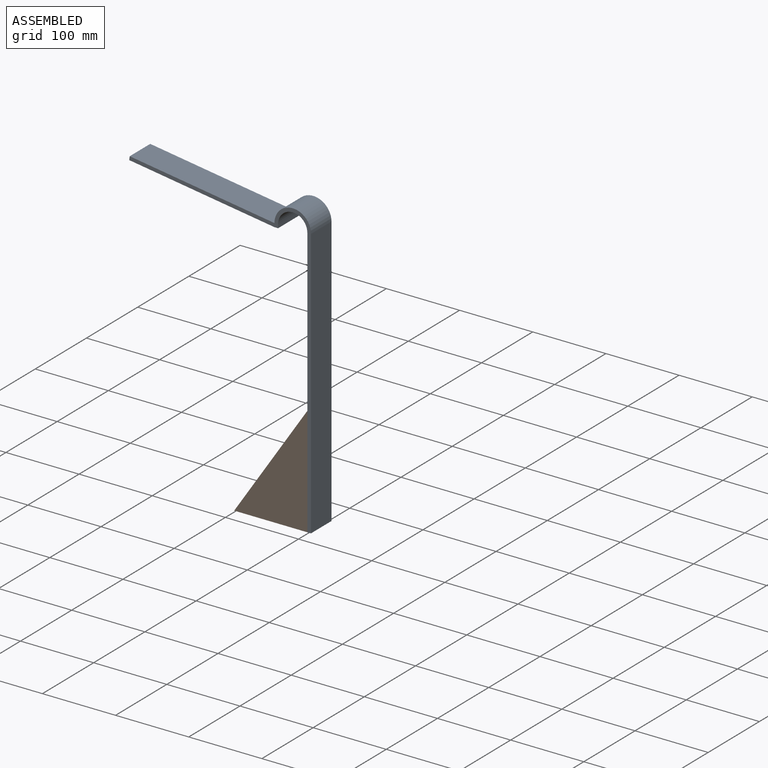
[diagram: assembled view]
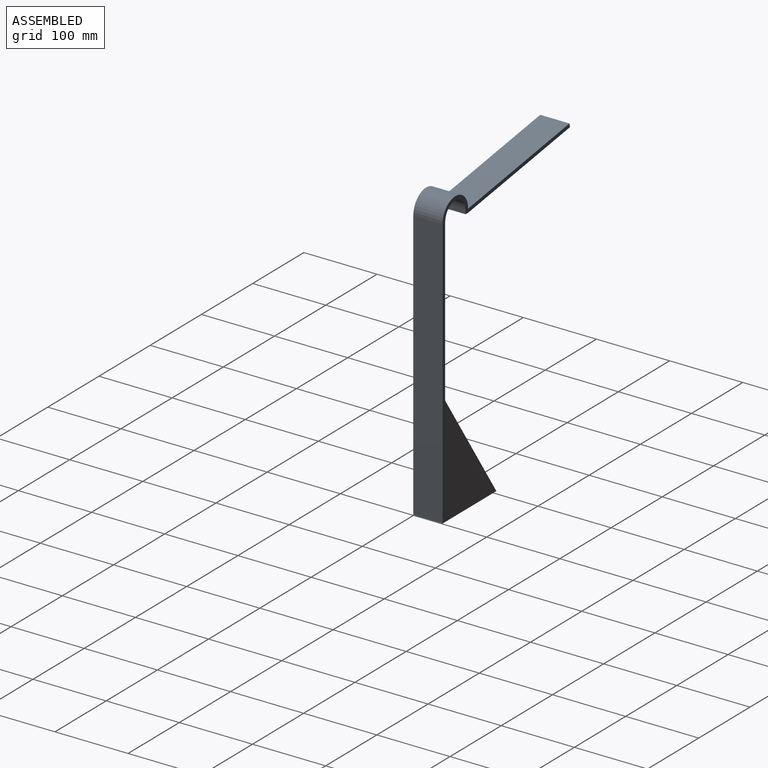
[diagram: assembled view, second angle]
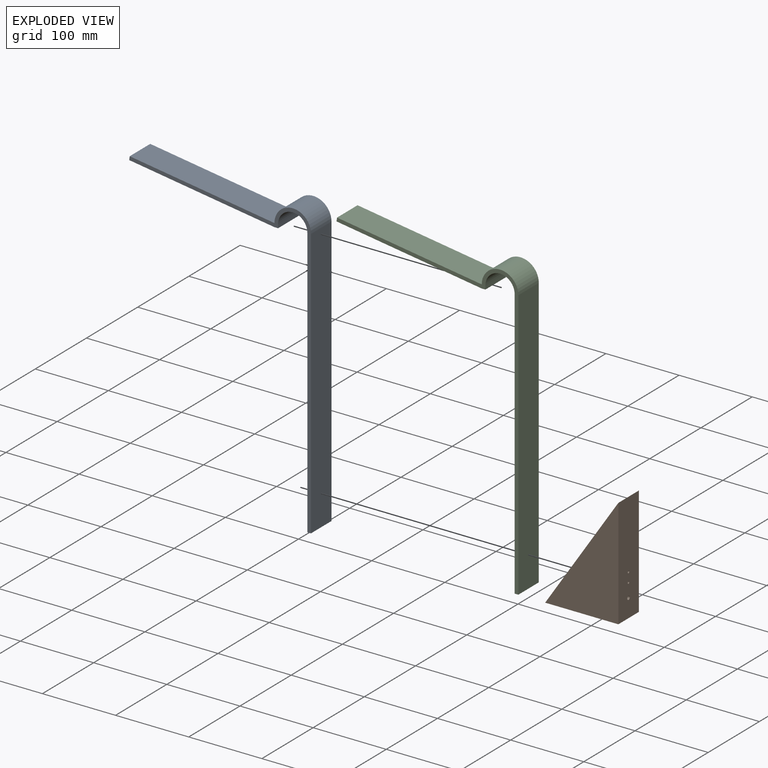
[diagram: exploded view]
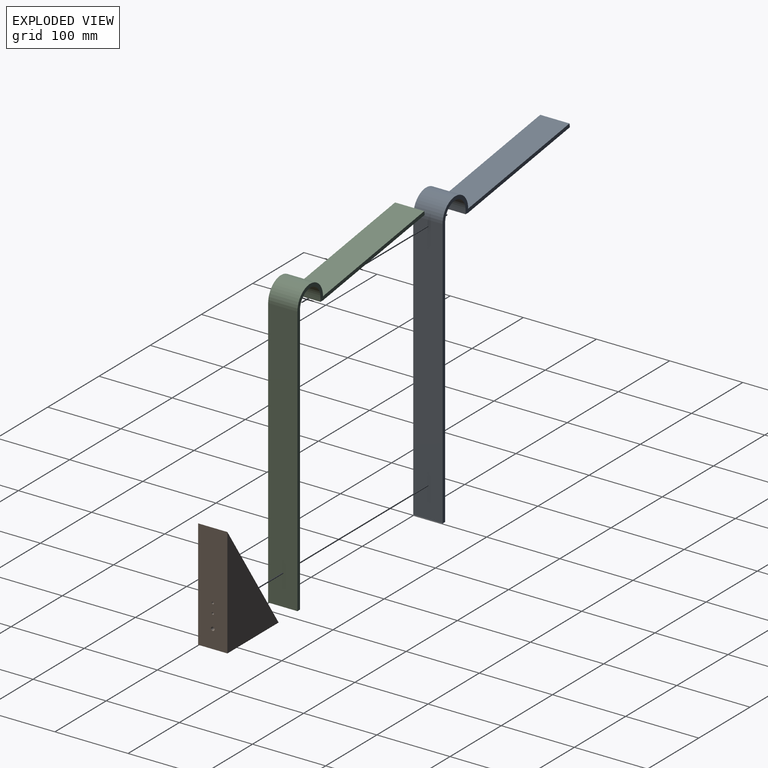
[diagram: exploded view, second angle]
ASSEMBLY  parts=3 mates=2
PART A: 12 faces, bbox 248.5x40x399.7 mm
  f0: cylinder r=20mm len=40mm, axis (0,-1,0), area 2513.3mm2, adj f1,f9,f10,f11
  f1: plane 370x40mm, normal (-1,0,0), area 14800mm2, adj f0,f2,f10,f11
  f2: plane 40x5mm, normal (0,0,-1), area 200mm2, adj f1,f3,f10,f11
  f3: plane 370x40mm, normal (1,0,0), area 14800mm2, adj f2,f4,f10,f11
  f4: cylinder r=25mm len=50mm, axis (0,-1,0), area 3141.6mm2, adj f3,f5,f10,f11
  f5: plane 197.79x40mm, normal (0.15,0,0.99), area 8000mm2, adj f4,f6,f10,f11
  f6: plane 40x4.94mm, normal (-0.99,0,0.15), area 200mm2, adj f5,f7,f10,f11
  f7: plane 198.53x40mm, normal (-0.15,0,-0.99), area 8030mm2, adj f6,f8,f10,f11
  f8: plane 40x5mm, normal (0,0,-1), area 200mm2, adj f7,f9,f10,f11
  f9: plane 40x5.06mm, normal (1,0,0), area 202.2mm2, adj f0,f8,f10,f11
  f10: plane 399.67x248.53mm, normal (0,1,0), area 3230.6mm2, adj f0,f1,f2,f3,f4,f5,f6,f7
  f11: plane 399.67x248.53mm, normal (0,-1,0), area 3230.6mm2, adj f0,f1,f2,f3,f4,f5,f6,f7
PART B: 10 faces, bbox 100x40x150 mm
  f0: plane 150x100mm, normal (0.83,0,0.55), area 7187.5mm2, adj f1,f2,f3,f4,f5
  f1: plane 150x40mm, normal (-1,0,0), area 5966.2mm2, adj f0,f2,f3,f4,f5,f6,f8
  f2: plane 100x40mm, normal (0,0,-1), area 4000mm2, adj f0,f1,f3,f4
  f3: plane 150x100mm, normal (0,-1,0), area 7500mm2, adj f0,f1,f2
  f4: plane 150x100mm, normal (0,1,0), area 7500mm2, adj f0,f1,f2
  f5: cylinder r=2.5mm len=85.02mm, axis (-1,0,0), area 1309mm2, adj f0,f1
  f6: cylinder r=1.5mm len=20mm, axis (-1,0,0), area 188.5mm2, adj f1,f7
  f7: plane 3x3mm, normal (-1,0,0), area 7.1mm2, adj f6
  f8: cylinder r=1.5mm len=20mm, axis (-1,0,0), area 188.5mm2, adj f1,f9
  f9: plane 3x3mm, normal (-1,0,0), area 7.1mm2, adj f8
PART C: same geometry as A
PLACE A t=(11.56,207.88,73.7)mm
PLACE B rot(axis=(0,0,-1),180deg) t=(6.56,207.88,73.7)mm
PLACE C t=(11.56,207.88,73.7)mm
MATE planar B.f1 <-> A.f1  axis (1,0,0) through (6.56,227.88,148.92)mm
MATE planar B.f2 <-> A.f2  axis (0,0,-1) through (-43.44,227.88,73.7)mm
